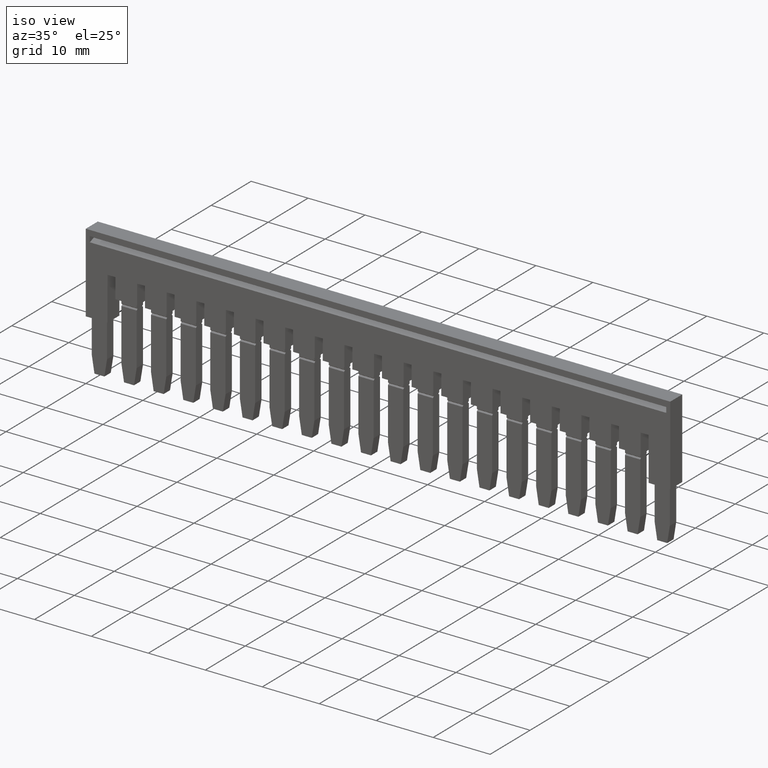
[diagram: clean part render]
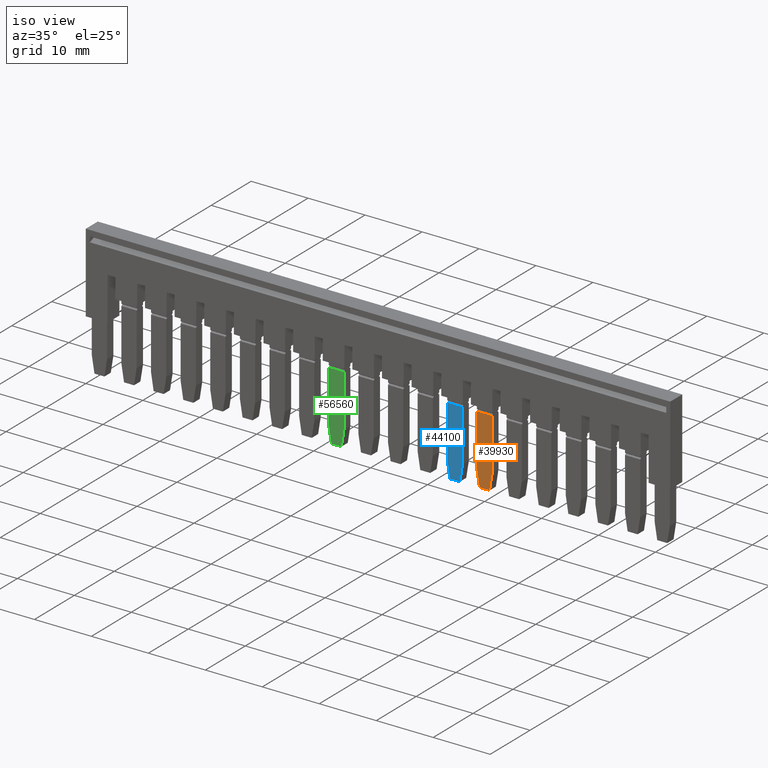
[diagram: same view with three faces highlighted in distinct colors, each labeled with its STEP entity id]
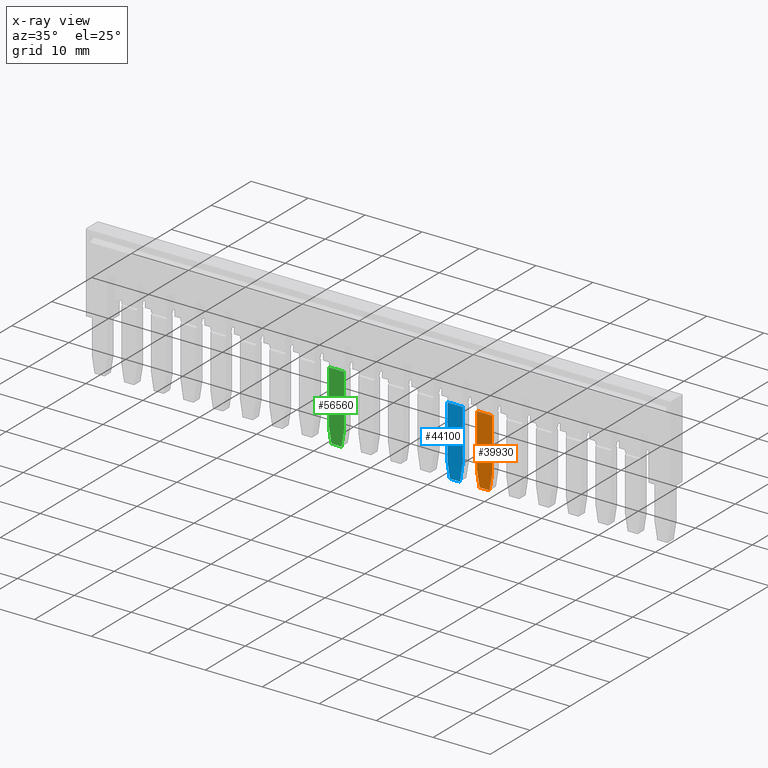
[diagram: x-ray of the same camera — body ghosted, the three highlighted faces saturated]
A machine part, iso view with three faces highlighted in distinct colors.
The next image is the same camera in x-ray (body ghosted, the three faces saturated) — at least one of them is partly hidden behind the body in this view.
Their STEP definitions:

[orange] entity #39930 — the highlighted planar face has unit normal (0, -1, 0).
#39380=CARTESIAN_POINT('',(4.90716722169512,-23.8278710312379,
72.0600000009641));
#39390=DIRECTION('',(1.,-0.,0.));
#39400=DIRECTION('',(0.,0.,-1.));
#39410=AXIS2_PLACEMENT_3D('',#39380,#39390,#39400);
#39420=PLANE('',#39410);
#39430=CARTESIAN_POINT('',(4.90716722169512,-19.8610705438462,41.874984)
);
#39440=DIRECTION('',(0.,0.,1.));
#39450=VECTOR('',#39440,1.);
#39460=LINE('',#39430,#39450);
#39470=CARTESIAN_POINT('',(4.90716722169512,-19.8610705438462,
49.9200000009647));
#39480=VERTEX_POINT('',#39470);
#39490=CARTESIAN_POINT('',(4.90716722169512,-19.8610705438462,
52.6000000009636));
#39500=VERTEX_POINT('',#39490);
#39510=EDGE_CURVE('',#39480,#39500,#39460,.T.);
#39520=ORIENTED_EDGE('',*,*,#39510,.T.);
#39530=CARTESIAN_POINT('',(4.90716722169512,-12.305124,49.9200000009647)
);
#39540=DIRECTION('',(0.,-1.,-9.11930314421364E-17));
#39550=VECTOR('',#39540,1.);
#39560=LINE('',#39530,#39550);
#39570=CARTESIAN_POINT('',(4.90716722169512,-28.9807420624754,
49.9200000009647));
#39580=VERTEX_POINT('',#39570);
#39590=EDGE_CURVE('',#39480,#39580,#39560,.T.);
#39600=ORIENTED_EDGE('',*,*,#39590,.F.);
#39610=CARTESIAN_POINT('',(4.90716722169512,-12.305124,47.2280274188111)
);
#39620=DIRECTION('',(0.,0.987219178105449,-0.159368423411924));
#39630=VECTOR('',#39620,1.);
#39640=LINE('',#39610,#39630);
#39650=CARTESIAN_POINT('',(4.90716722169512,-31.8500000022956,
50.3831890519603));
#39660=VERTEX_POINT('',#39650);
#39670=EDGE_CURVE('',#39660,#39580,#39640,.T.);
#39680=ORIENTED_EDGE('',*,*,#39670,.T.);
#39690=CARTESIAN_POINT('',(4.90716722169512,-31.8500000022853,-20.525016
));
#39700=DIRECTION('',(0.,-1.44960956186225E-13,1.));
#39710=VECTOR('',#39700,1.);
#39720=LINE('',#39690,#39710);
#39730=CARTESIAN_POINT('',(4.90716722169512,-31.8500000022958,
52.136810949968));
#39740=VERTEX_POINT('',#39730);
#39750=EDGE_CURVE('',#39660,#39740,#39720,.T.);
#39760=ORIENTED_EDGE('',*,*,#39750,.F.);
#39770=CARTESIAN_POINT('',(4.90716722169512,-12.305124,55.2919725831172)
);
#39780=DIRECTION('',(0.,-0.987219178105449,-0.159368423411924));
#39790=VECTOR('',#39780,1.);
#39800=LINE('',#39770,#39790);
#39810=CARTESIAN_POINT('',(4.90716722169512,-28.9807420624751,
52.6000000009636));
#39820=VERTEX_POINT('',#39810);
#39830=EDGE_CURVE('',#39820,#39740,#39800,.T.);
#39840=ORIENTED_EDGE('',*,*,#39830,.T.);
#39850=CARTESIAN_POINT('',(4.90716722169512,-12.305124,52.6000000009636)
);
#39860=DIRECTION('',(0.,-1.,-2.3789721411555E-16));
#39870=VECTOR('',#39860,1.);
#39880=LINE('',#39850,#39870);
#39890=EDGE_CURVE('',#39500,#39820,#39880,.T.);
#39900=ORIENTED_EDGE('',*,*,#39890,.T.);
#39910=EDGE_LOOP('',(#39900,#39840,#39760,#39680,#39600,#39520));
#39920=FACE_OUTER_BOUND('',#39910,.T.);
#39930=ADVANCED_FACE('',(#39920),#39420,.T.);

[blue] entity #44100 — the highlighted planar face has unit normal (0, -1, 0).
#43550=CARTESIAN_POINT('',(4.90716722169512,-23.8278710312379,
72.0600000009641));
#43560=DIRECTION('',(1.,-0.,0.));
#43570=DIRECTION('',(0.,0.,-1.));
#43580=AXIS2_PLACEMENT_3D('',#43550,#43560,#43570);
#43590=PLANE('',#43580);
#43600=CARTESIAN_POINT('',(4.90716722169512,-19.8610705438462,41.874984)
);
#43610=DIRECTION('',(0.,0.,1.));
#43620=VECTOR('',#43610,1.);
#43630=LINE('',#43600,#43620);
#43640=CARTESIAN_POINT('',(4.90716722169512,-19.8610705438462,
55.1200000009647));
#43650=VERTEX_POINT('',#43640);
#43660=CARTESIAN_POINT('',(4.90716722169512,-19.8610705438462,
57.8000000009636));
#43670=VERTEX_POINT('',#43660);
#43680=EDGE_CURVE('',#43650,#43670,#43630,.T.);
#43690=ORIENTED_EDGE('',*,*,#43680,.T.);
#43700=CARTESIAN_POINT('',(4.90716722169512,-12.305124,55.1200000009647)
);
#43710=DIRECTION('',(0.,-1.,-9.11930314421364E-17));
#43720=VECTOR('',#43710,1.);
#43730=LINE('',#43700,#43720);
#43740=CARTESIAN_POINT('',(4.90716722169512,-28.9807420624754,
55.1200000009647));
#43750=VERTEX_POINT('',#43740);
#43760=EDGE_CURVE('',#43650,#43750,#43730,.T.);
#43770=ORIENTED_EDGE('',*,*,#43760,.F.);
#43780=CARTESIAN_POINT('',(4.90716722169512,-12.305124,52.4280274188111)
);
#43790=DIRECTION('',(0.,0.987219178105449,-0.159368423411924));
#43800=VECTOR('',#43790,1.);
#43810=LINE('',#43780,#43800);
#43820=CARTESIAN_POINT('',(4.90716722169512,-31.8500000022956,
55.5831890519603));
#43830=VERTEX_POINT('',#43820);
#43840=EDGE_CURVE('',#43830,#43750,#43810,.T.);
#43850=ORIENTED_EDGE('',*,*,#43840,.T.);
#43860=CARTESIAN_POINT('',(4.90716722169512,-31.8500000022853,-15.325016
));
#43870=DIRECTION('',(0.,-1.44960956186225E-13,1.));
#43880=VECTOR('',#43870,1.);
#43890=LINE('',#43860,#43880);
#43900=CARTESIAN_POINT('',(4.90716722169512,-31.8500000022959,
57.336810949968));
#43910=VERTEX_POINT('',#43900);
#43920=EDGE_CURVE('',#43830,#43910,#43890,.T.);
#43930=ORIENTED_EDGE('',*,*,#43920,.F.);
#43940=CARTESIAN_POINT('',(4.90716722169512,-12.305124,60.4919725831172)
);
#43950=DIRECTION('',(0.,-0.987219178105449,-0.159368423411924));
#43960=VECTOR('',#43950,1.);
#43970=LINE('',#43940,#43960);
#43980=CARTESIAN_POINT('',(4.90716722169512,-28.9807420624751,
57.8000000009636));
#43990=VERTEX_POINT('',#43980);
#44000=EDGE_CURVE('',#43990,#43910,#43970,.T.);
#44010=ORIENTED_EDGE('',*,*,#44000,.T.);
#44020=CARTESIAN_POINT('',(4.90716722169512,-12.305124,57.8000000009636)
);
#44030=DIRECTION('',(0.,-1.,-2.3789721411555E-16));
#44040=VECTOR('',#44030,1.);
#44050=LINE('',#44020,#44040);
#44060=EDGE_CURVE('',#43670,#43990,#44050,.T.);
#44070=ORIENTED_EDGE('',*,*,#44060,.T.);
#44080=EDGE_LOOP('',(#44070,#44010,#43930,#43850,#43770,#43690));
#44090=FACE_OUTER_BOUND('',#44080,.T.);
#44100=ADVANCED_FACE('',(#44090),#43590,.T.);

[green] entity #56560 — the highlighted planar face has unit normal (0, -1, 0).
#56010=CARTESIAN_POINT('',(4.90716722169512,-23.8278710312379,
92.8600000009642));
#56020=DIRECTION('',(1.,-0.,0.));
#56030=DIRECTION('',(0.,0.,-1.));
#56040=AXIS2_PLACEMENT_3D('',#56010,#56020,#56030);
#56050=PLANE('',#56040);
#56060=CARTESIAN_POINT('',(4.90716722169512,-19.8610705438462,41.874984)
);
#56070=DIRECTION('',(0.,0.,1.));
#56080=VECTOR('',#56070,1.);
#56090=LINE('',#56060,#56080);
#56100=CARTESIAN_POINT('',(4.90716722169512,-19.8610705438462,
75.9200000009648));
#56110=VERTEX_POINT('',#56100);
#56120=CARTESIAN_POINT('',(4.90716722169512,-19.8610705438462,
78.6000000009637));
#56130=VERTEX_POINT('',#56120);
#56140=EDGE_CURVE('',#56110,#56130,#56090,.T.);
#56150=ORIENTED_EDGE('',*,*,#56140,.T.);
#56160=CARTESIAN_POINT('',(4.90716722169512,-12.305124,75.9200000009648)
);
#56170=DIRECTION('',(0.,-1.,-9.11930314421364E-17));
#56180=VECTOR('',#56170,1.);
#56190=LINE('',#56160,#56180);
#56200=CARTESIAN_POINT('',(4.90716722169512,-28.9807420624754,
75.9200000009648));
#56210=VERTEX_POINT('',#56200);
#56220=EDGE_CURVE('',#56110,#56210,#56190,.T.);
#56230=ORIENTED_EDGE('',*,*,#56220,.F.);
#56240=CARTESIAN_POINT('',(4.90716722169512,-12.305124,73.2280274188111)
);
#56250=DIRECTION('',(0.,0.987219178105449,-0.159368423411924));
#56260=VECTOR('',#56250,1.);
#56270=LINE('',#56240,#56260);
#56280=CARTESIAN_POINT('',(4.90716722169512,-31.8500000022956,
76.3831890519603));
#56290=VERTEX_POINT('',#56280);
#56300=EDGE_CURVE('',#56290,#56210,#56270,.T.);
#56310=ORIENTED_EDGE('',*,*,#56300,.T.);
#56320=CARTESIAN_POINT('',(4.90716722169512,-31.8500000022853,
5.47498400000008));
#56330=DIRECTION('',(0.,-1.44960956186225E-13,1.));
#56340=VECTOR('',#56330,1.);
#56350=LINE('',#56320,#56340);
#56360=CARTESIAN_POINT('',(4.90716722169512,-31.8500000022958,
78.136810949968));
#56370=VERTEX_POINT('',#56360);
#56380=EDGE_CURVE('',#56290,#56370,#56350,.T.);
#56390=ORIENTED_EDGE('',*,*,#56380,.F.);
#56400=CARTESIAN_POINT('',(4.90716722169512,-12.305124,81.2919725831172)
);
#56410=DIRECTION('',(0.,-0.987219178105449,-0.159368423411924));
#56420=VECTOR('',#56410,1.);
#56430=LINE('',#56400,#56420);
#56440=CARTESIAN_POINT('',(4.90716722169512,-28.9807420624751,
78.6000000009637));
#56450=VERTEX_POINT('',#56440);
#56460=EDGE_CURVE('',#56450,#56370,#56430,.T.);
#56470=ORIENTED_EDGE('',*,*,#56460,.T.);
#56480=CARTESIAN_POINT('',(4.90716722169512,-12.305124,78.6000000009637)
);
#56490=DIRECTION('',(0.,-1.,-2.3789721411555E-16));
#56500=VECTOR('',#56490,1.);
#56510=LINE('',#56480,#56500);
#56520=EDGE_CURVE('',#56130,#56450,#56510,.T.);
#56530=ORIENTED_EDGE('',*,*,#56520,.T.);
#56540=EDGE_LOOP('',(#56530,#56470,#56390,#56310,#56230,#56150));
#56550=FACE_OUTER_BOUND('',#56540,.T.);
#56560=ADVANCED_FACE('',(#56550),#56050,.T.);